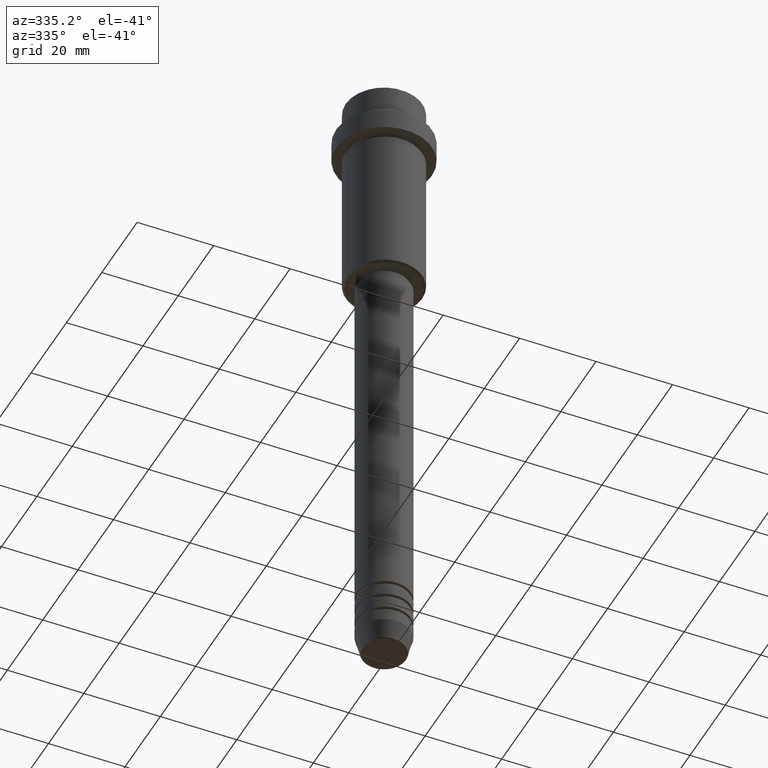
[diagram: clean part render]
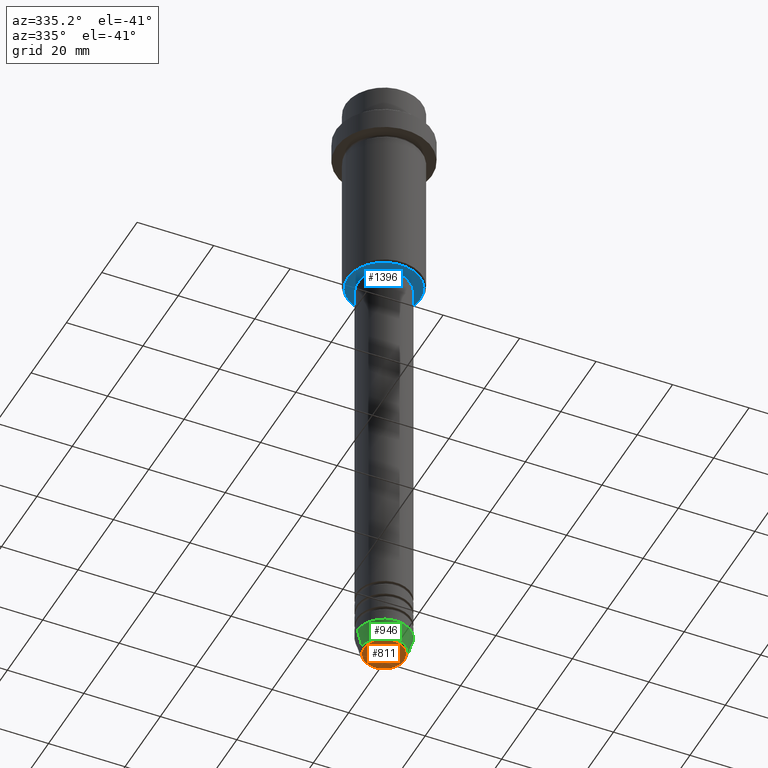
[diagram: same view with three faces highlighted in distinct colors, each labeled with its STEP entity id]
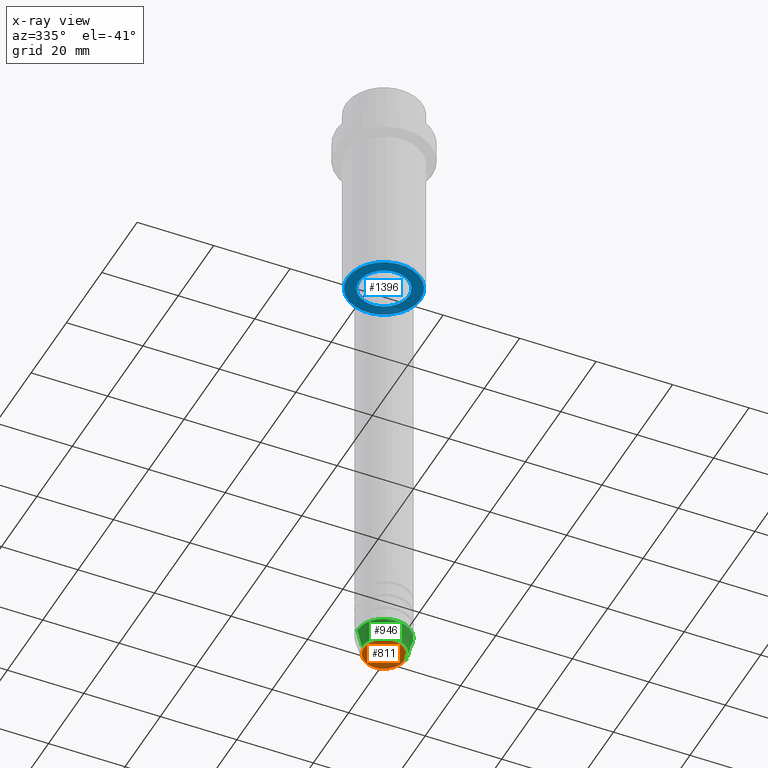
[diagram: x-ray of the same camera — body ghosted, the three highlighted faces saturated]
A machine part, auxiliary view with three faces highlighted in distinct colors.
The next image is the same camera in x-ray (body ghosted, the three faces saturated) — at least one of them is partly hidden behind the body in this view.
Their STEP definitions:

[orange] entity #811 — the highlighted planar face has unit normal (0, -0, 1).
#49 = EDGE_CURVE ( 'NONE', #551, #51, #1151, .T. ) ;
#51 = VERTEX_POINT ( 'NONE', #482 ) ;
#145 = CARTESIAN_POINT ( 'NONE',  ( -5.276590543854905668, 6.757689212787771832E-16, -169.9999999999999716 ) ) ;
#275 = AXIS2_PLACEMENT_3D ( 'NONE', #1335, #990, #368 ) ;
#368 = DIRECTION ( 'NONE',  ( 1.000000000000000000, 0.000000000000000000, 0.000000000000000000 ) ) ;
#414 = EDGE_LOOP ( 'NONE', ( #1178, #1356 ) ) ;
#473 = CIRCLE ( 'NONE', #1342, 5.276590543854905668 ) ;
#482 = CARTESIAN_POINT ( 'NONE',  ( 5.276590543854905668, 0.000000000000000000, -169.9999999999999716 ) ) ;
#551 = VERTEX_POINT ( 'NONE', #145 ) ;
#555 = EDGE_CURVE ( 'NONE', #51, #551, #473, .T. ) ;
#568 = PLANE ( 'NONE',  #275 ) ;
#652 = FACE_OUTER_BOUND ( 'NONE', #414, .T. ) ;
#762 = DIRECTION ( 'NONE',  ( 0.000000000000000000, 0.000000000000000000, -1.000000000000000000 ) ) ;
#805 = DIRECTION ( 'NONE',  ( 0.000000000000000000, 0.000000000000000000, -1.000000000000000000 ) ) ;
#811 = ADVANCED_FACE ( 'NONE', ( #652 ), #568, .F. ) ;
#870 = CARTESIAN_POINT ( 'NONE',  ( 0.000000000000000000, 0.000000000000000000, -169.9999999999999716 ) ) ;
#990 = DIRECTION ( 'NONE',  ( 0.000000000000000000, -0.000000000000000000, 1.000000000000000000 ) ) ;
#1094 = DIRECTION ( 'NONE',  ( 1.000000000000000000, 0.000000000000000000, 0.000000000000000000 ) ) ;
#1151 = CIRCLE ( 'NONE', #1337, 5.276590543854905668 ) ;
#1178 = ORIENTED_EDGE ( 'NONE', *, *, #555, .T. ) ;
#1335 = CARTESIAN_POINT ( 'NONE',  ( 0.000000000000000000, 0.000000000000000000, -169.9999999999999716 ) ) ;
#1337 = AXIS2_PLACEMENT_3D ( 'NONE', #870, #762, #1094 ) ;
#1342 = AXIS2_PLACEMENT_3D ( 'NONE', #1349, #805, #1358 ) ;
#1349 = CARTESIAN_POINT ( 'NONE',  ( 0.000000000000000000, 0.000000000000000000, -169.9999999999999716 ) ) ;
#1356 = ORIENTED_EDGE ( 'NONE', *, *, #49, .T. ) ;
#1358 = DIRECTION ( 'NONE',  ( 1.000000000000000000, 0.000000000000000000, 0.000000000000000000 ) ) ;

[blue] entity #1396 — the highlighted planar face has unit normal (0, 0, -1).
#73 = CARTESIAN_POINT ( 'NONE',  ( -9.499999999999966249, 1.194030629168667300E-15, -54.99999999999998579 ) ) ;
#105 = CIRCLE ( 'NONE', #514, 6.499999999999994671 ) ;
#146 = DIRECTION ( 'NONE',  ( -0.000000000000000000, -0.000000000000000000, 1.000000000000000000 ) ) ;
#158 = AXIS2_PLACEMENT_3D ( 'NONE', #376, #1361, #1032 ) ;
#215 = EDGE_LOOP ( 'NONE', ( #1186, #959 ) ) ;
#266 = EDGE_CURVE ( 'NONE', #1417, #1196, #105, .T. ) ;
#299 = AXIS2_PLACEMENT_3D ( 'NONE', #902, #914, #700 ) ;
#376 = CARTESIAN_POINT ( 'NONE',  ( 0.000000000000000000, 0.000000000000000000, -54.99999999999998579 ) ) ;
#380 = FACE_BOUND ( 'NONE', #1008, .T. ) ;
#420 = DIRECTION ( 'NONE',  ( -1.000000000000000000, 0.000000000000000000, 0.000000000000000000 ) ) ;
#483 = CARTESIAN_POINT ( 'NONE',  ( -6.499999999999994671, 7.960204194457788574E-16, -54.99999999999998579 ) ) ;
#498 = CIRCLE ( 'NONE', #543, 9.499999999999966249 ) ;
#514 = AXIS2_PLACEMENT_3D ( 'NONE', #1340, #146, #1015 ) ;
#543 = AXIS2_PLACEMENT_3D ( 'NONE', #839, #820, #420 ) ;
#574 = VERTEX_POINT ( 'NONE', #73 ) ;
#575 = CARTESIAN_POINT ( 'NONE',  ( 9.499999999999966249, 0.000000000000000000, -54.99999999999998579 ) ) ;
#630 = CIRCLE ( 'NONE', #158, 9.499999999999966249 ) ;
#655 = CIRCLE ( 'NONE', #1023, 6.499999999999994671 ) ;
#700 = DIRECTION ( 'NONE',  ( -1.000000000000000000, 0.000000000000000000, -0.000000000000000000 ) ) ;
#788 = FACE_OUTER_BOUND ( 'NONE', #215, .T. ) ;
#812 = CARTESIAN_POINT ( 'NONE',  ( 0.000000000000000000, 0.000000000000000000, -54.99999999999998579 ) ) ;
#820 = DIRECTION ( 'NONE',  ( 0.000000000000000000, 0.000000000000000000, -1.000000000000000000 ) ) ;
#839 = CARTESIAN_POINT ( 'NONE',  ( 0.000000000000000000, 0.000000000000000000, -54.99999999999998579 ) ) ;
#902 = CARTESIAN_POINT ( 'NONE',  ( 0.000000000000000000, 10.00000000000000000, -54.99999999999998579 ) ) ;
#914 = DIRECTION ( 'NONE',  ( 0.000000000000000000, 0.000000000000000000, -1.000000000000000000 ) ) ;
#959 = ORIENTED_EDGE ( 'NONE', *, *, #1205, .T. ) ;
#964 = EDGE_CURVE ( 'NONE', #968, #574, #630, .T. ) ;
#968 = VERTEX_POINT ( 'NONE', #575 ) ;
#1008 = EDGE_LOOP ( 'NONE', ( #1173, #1276 ) ) ;
#1015 = DIRECTION ( 'NONE',  ( 1.000000000000000000, 0.000000000000000000, 0.000000000000000000 ) ) ;
#1019 = DIRECTION ( 'NONE',  ( 1.000000000000000000, 0.000000000000000000, 0.000000000000000000 ) ) ;
#1023 = AXIS2_PLACEMENT_3D ( 'NONE', #812, #1248, #1019 ) ;
#1029 = EDGE_CURVE ( 'NONE', #1196, #1417, #655, .T. ) ;
#1032 = DIRECTION ( 'NONE',  ( -1.000000000000000000, 0.000000000000000000, 0.000000000000000000 ) ) ;
#1173 = ORIENTED_EDGE ( 'NONE', *, *, #1029, .T. ) ;
#1186 = ORIENTED_EDGE ( 'NONE', *, *, #964, .T. ) ;
#1196 = VERTEX_POINT ( 'NONE', #1267 ) ;
#1205 = EDGE_CURVE ( 'NONE', #574, #968, #498, .T. ) ;
#1248 = DIRECTION ( 'NONE',  ( -0.000000000000000000, -0.000000000000000000, 1.000000000000000000 ) ) ;
#1267 = CARTESIAN_POINT ( 'NONE',  ( 6.499999999999994671, 0.000000000000000000, -54.99999999999998579 ) ) ;
#1276 = ORIENTED_EDGE ( 'NONE', *, *, #266, .T. ) ;
#1340 = CARTESIAN_POINT ( 'NONE',  ( 0.000000000000000000, 0.000000000000000000, -54.99999999999998579 ) ) ;
#1359 = PLANE ( 'NONE',  #299 ) ;
#1361 = DIRECTION ( 'NONE',  ( 0.000000000000000000, 0.000000000000000000, -1.000000000000000000 ) ) ;
#1396 = ADVANCED_FACE ( 'NONE', ( #788, #380 ), #1359, .T. ) ;
#1417 = VERTEX_POINT ( 'NONE', #483 ) ;

[green] entity #946 — the highlighted conical surface has half-angle 15 deg.
#10 = CARTESIAN_POINT ( 'NONE',  ( -5.759553456999435994, 7.812973149831951773E-16, -169.6294095225512422 ) ) ;
#29 = DIRECTION ( 'NONE',  ( -0.2588190451025213501, 3.169619151431772337E-17, 0.9659258262890680902 ) ) ;
#41 = AXIS2_PLACEMENT_3D ( 'NONE', #922, #1357, #1346 ) ;
#57 = CIRCLE ( 'NONE', #1083, 7.000000000000000000 ) ;
#68 = ORIENTED_EDGE ( 'NONE', *, *, #571, .T. ) ;
#136 = DIRECTION ( 'NONE',  ( -0.000000000000000000, -0.000000000000000000, 1.000000000000000000 ) ) ;
#149 = EDGE_LOOP ( 'NONE', ( #969, #1031, #68, #789 ) ) ;
#220 = FACE_OUTER_BOUND ( 'NONE', #149, .T. ) ;
#222 = VERTEX_POINT ( 'NONE', #10 ) ;
#236 = CARTESIAN_POINT ( 'NONE',  ( -7.000000000000000000, 8.572527594031473190E-16, -164.9999999999999716 ) ) ;
#255 = VECTOR ( 'NONE', #29, 1000.000000000000000 ) ;
#309 = DIRECTION ( 'NONE',  ( -0.000000000000000000, -0.000000000000000000, 1.000000000000000000 ) ) ;
#326 = AXIS2_PLACEMENT_3D ( 'NONE', #1150, #309, #1067 ) ;
#340 = CARTESIAN_POINT ( 'NONE',  ( 7.000000000000000000, 0.000000000000000000, -164.9999999999999716 ) ) ;
#389 = CARTESIAN_POINT ( 'NONE',  ( -7.000000000000000000, 8.572527594031473190E-16, -164.9999999999999716 ) ) ;
#455 = EDGE_CURVE ( 'NONE', #966, #1246, #57, .T. ) ;
#474 = CONICAL_SURFACE ( 'NONE', #41, 7.000000000000000000, 0.2617993877991500740 ) ;
#571 = EDGE_CURVE ( 'NONE', #1101, #1246, #1366, .T. ) ;
#769 = VECTOR ( 'NONE', #1053, 1000.000000000000000 ) ;
#782 = CARTESIAN_POINT ( 'NONE',  ( 0.000000000000000000, 0.000000000000000000, -164.9999999999999716 ) ) ;
#789 = ORIENTED_EDGE ( 'NONE', *, *, #455, .F. ) ;
#873 = DIRECTION ( 'NONE',  ( 1.000000000000000000, 0.000000000000000000, 0.000000000000000000 ) ) ;
#901 = EDGE_CURVE ( 'NONE', #222, #966, #1090, .T. ) ;
#922 = CARTESIAN_POINT ( 'NONE',  ( 0.000000000000000000, 0.000000000000000000, -164.9999999999999716 ) ) ;
#946 = ADVANCED_FACE ( 'NONE', ( #220 ), #474, .T. ) ;
#950 = CIRCLE ( 'NONE', #326, 5.759553456999435994 ) ;
#951 = CARTESIAN_POINT ( 'NONE',  ( 5.759553456999435994, 0.000000000000000000, -169.6294095225512422 ) ) ;
#966 = VERTEX_POINT ( 'NONE', #389 ) ;
#969 = ORIENTED_EDGE ( 'NONE', *, *, #901, .F. ) ;
#1031 = ORIENTED_EDGE ( 'NONE', *, *, #1107, .T. ) ;
#1053 = DIRECTION ( 'NONE',  ( 0.2588190451025213501, 0.000000000000000000, 0.9659258262890680902 ) ) ;
#1067 = DIRECTION ( 'NONE',  ( 1.000000000000000000, 0.000000000000000000, 0.000000000000000000 ) ) ;
#1083 = AXIS2_PLACEMENT_3D ( 'NONE', #782, #136, #873 ) ;
#1090 = LINE ( 'NONE', #236, #255 ) ;
#1101 = VERTEX_POINT ( 'NONE', #951 ) ;
#1107 = EDGE_CURVE ( 'NONE', #222, #1101, #950, .T. ) ;
#1150 = CARTESIAN_POINT ( 'NONE',  ( 0.000000000000000000, 0.000000000000000000, -169.6294095225512422 ) ) ;
#1165 = CARTESIAN_POINT ( 'NONE',  ( 7.000000000000000000, 0.000000000000000000, -164.9999999999999716 ) ) ;
#1246 = VERTEX_POINT ( 'NONE', #340 ) ;
#1346 = DIRECTION ( 'NONE',  ( 1.000000000000000000, 0.000000000000000000, 0.000000000000000000 ) ) ;
#1357 = DIRECTION ( 'NONE',  ( -0.000000000000000000, -0.000000000000000000, 1.000000000000000000 ) ) ;
#1366 = LINE ( 'NONE', #1165, #769 ) ;